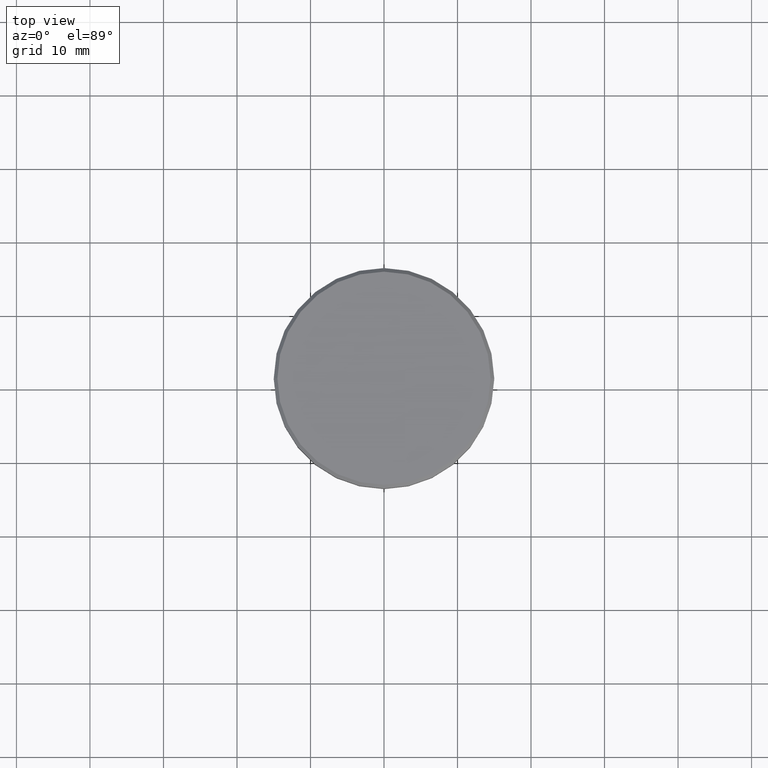
[diagram: clean part render]
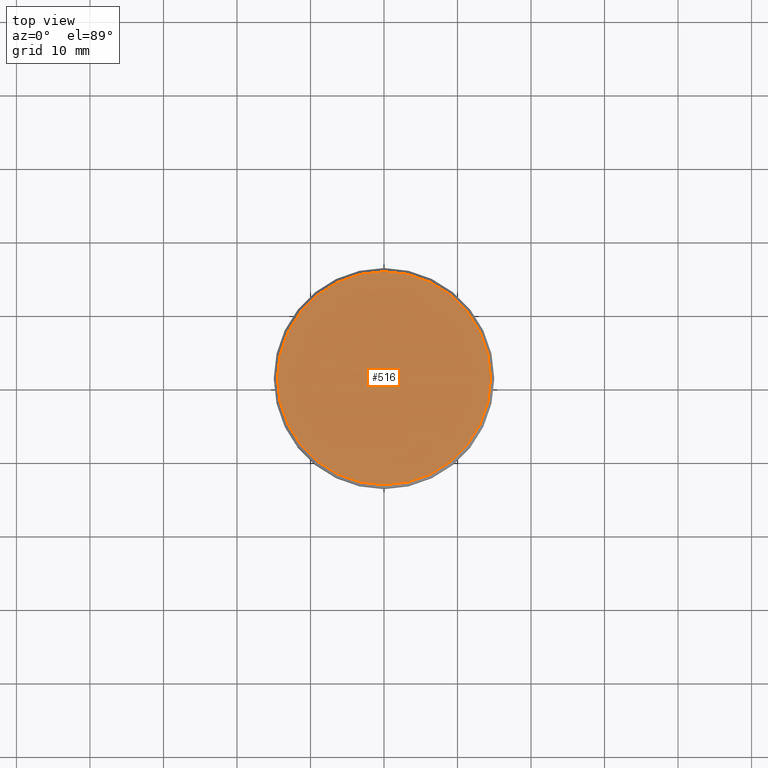
[diagram: same view with one face highlighted and labeled with its STEP entity id]
A machine part, top view. The second image highlights one B-rep face of the part: STEP entity #516.
In plain terms, the highlighted planar face has unit normal (0, -0, 1).
Its self-contained STEP definition (entity closure, byte-faithful):
#61 = DIRECTION ( 'NONE',  ( 1.000000000000000000, 0.000000000000000000, 0.000000000000000000 ) ) ;
#113 = DIRECTION ( 'NONE',  ( -0.000000000000000000, -0.000000000000000000, 1.000000000000000000 ) ) ;
#150 = ORIENTED_EDGE ( 'NONE', *, *, #177, .T. ) ;
#177 = EDGE_CURVE ( 'NONE', #825, #996, #715, .T. ) ;
#199 = EDGE_CURVE ( 'NONE', #996, #825, #549, .T. ) ;
#234 = CARTESIAN_POINT ( 'NONE',  ( 14.49999999999998401, 1.806354028742345013E-15, 0.000000000000000000 ) ) ;
#346 = PLANE ( 'NONE',  #661 ) ;
#347 = AXIS2_PLACEMENT_3D ( 'NONE', #905, #450, #817 ) ;
#443 = DIRECTION ( 'NONE',  ( 0.000000000000000000, -0.000000000000000000, 1.000000000000000000 ) ) ;
#450 = DIRECTION ( 'NONE',  ( -0.000000000000000000, -0.000000000000000000, 1.000000000000000000 ) ) ;
#516 = ADVANCED_FACE ( 'NONE', ( #617 ), #346, .T. ) ;
#549 = CIRCLE ( 'NONE', #873, 14.49999999999998401 ) ;
#577 = EDGE_LOOP ( 'NONE', ( #150, #767 ) ) ;
#617 = FACE_OUTER_BOUND ( 'NONE', #577, .T. ) ;
#661 = AXIS2_PLACEMENT_3D ( 'NONE', #1082, #443, #61 ) ;
#715 = CIRCLE ( 'NONE', #347, 14.49999999999998401 ) ;
#767 = ORIENTED_EDGE ( 'NONE', *, *, #199, .T. ) ;
#817 = DIRECTION ( 'NONE',  ( 1.000000000000000000, 0.000000000000000000, 0.000000000000000000 ) ) ;
#825 = VERTEX_POINT ( 'NONE', #1125 ) ;
#873 = AXIS2_PLACEMENT_3D ( 'NONE', #1092, #113, #914 ) ;
#905 = CARTESIAN_POINT ( 'NONE',  ( 0.000000000000000000, 0.000000000000000000, 0.000000000000000000 ) ) ;
#914 = DIRECTION ( 'NONE',  ( 1.000000000000000000, 0.000000000000000000, 0.000000000000000000 ) ) ;
#996 = VERTEX_POINT ( 'NONE', #234 ) ;
#1082 = CARTESIAN_POINT ( 'NONE',  ( 0.000000000000000000, 0.000000000000000000, 0.000000000000000000 ) ) ;
#1092 = CARTESIAN_POINT ( 'NONE',  ( 0.000000000000000000, 0.000000000000000000, 0.000000000000000000 ) ) ;
#1125 = CARTESIAN_POINT ( 'NONE',  ( -14.49999999999998401, 0.000000000000000000, 0.000000000000000000 ) ) ;